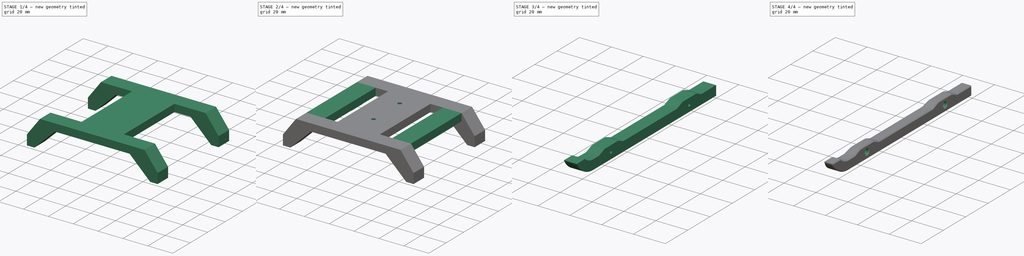
[diagram: build sequence overview — one tinted view per stage of 4, left to right]
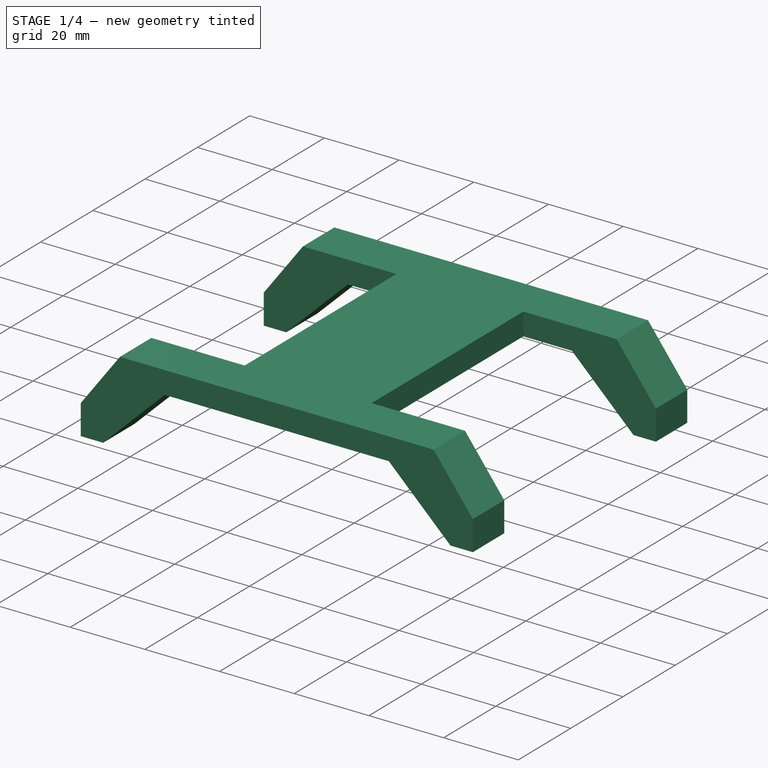
[diagram: stage 1 of 4 — iso view after this stage's code; geometry added in this stage tinted green]
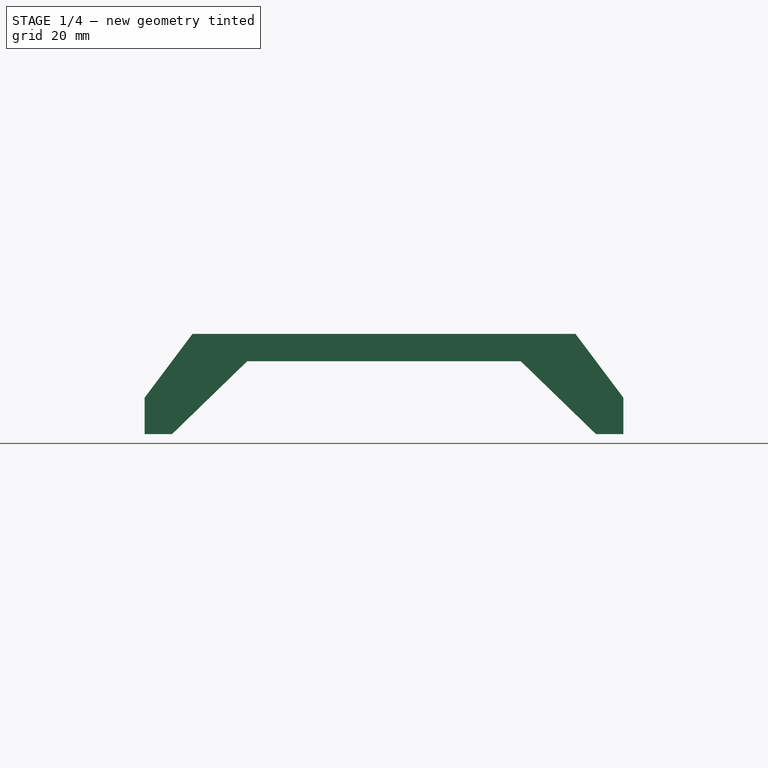
[diagram: stage 1 of 4 — front view after this stage's code; geometry added in this stage tinted green]
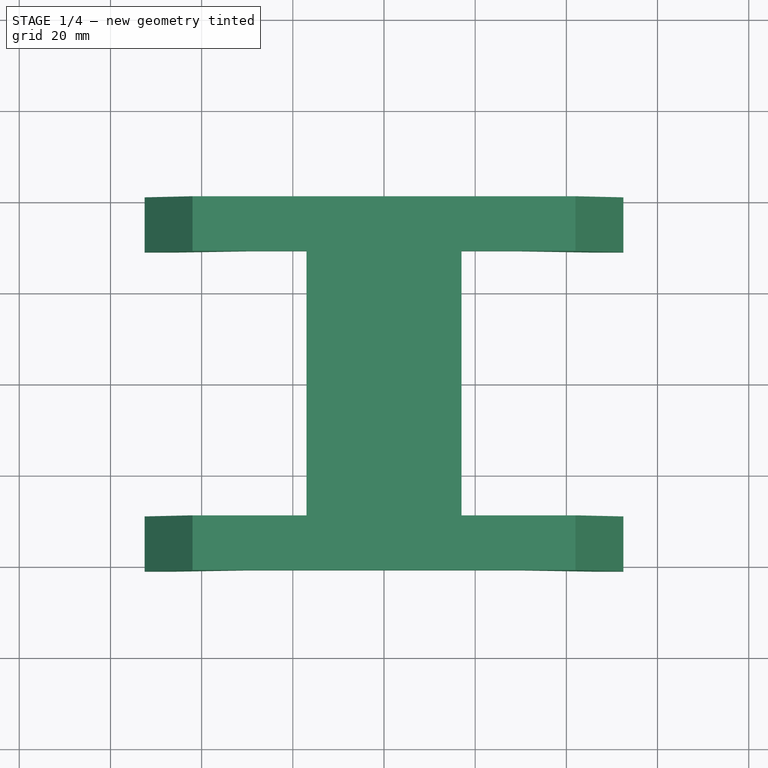
[diagram: stage 1 of 4 — top view after this stage's code; geometry added in this stage tinted green]
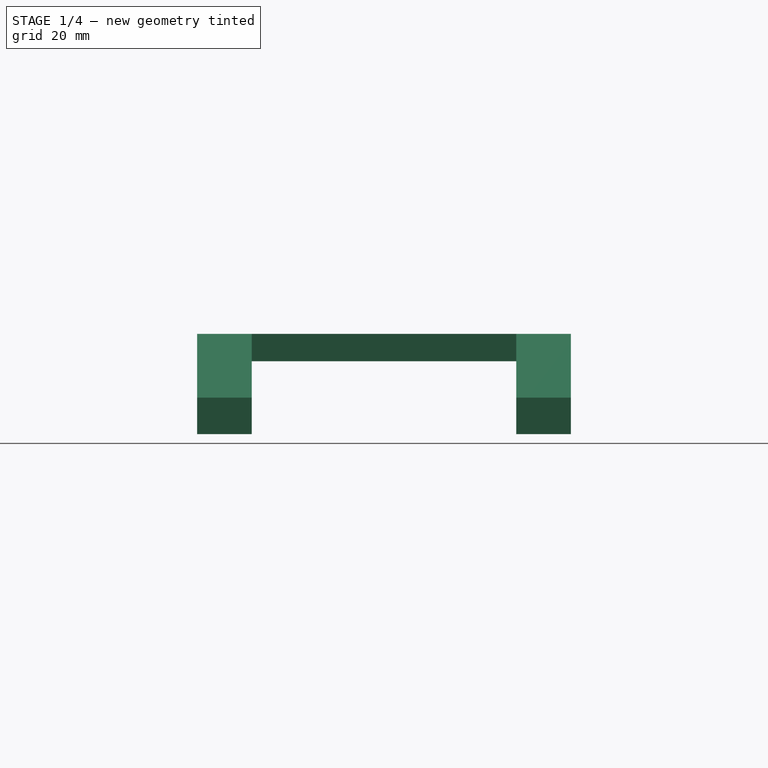
[diagram: stage 1 of 4 — right view after this stage's code; geometry added in this stage tinted green]
FCSTD DOCUMENT  (FreeCAD 1.0R39285 (Git))
Label: hubschrauber
License: All rights reserved
LicenseURL: https://en.wikipedia.org/wiki/All_rights_reserved
objects: Sketcher::SketchObject×8, PartDesign::Pad×5, PartDesign::Hole×3, PartDesign::Pocket×2, PartDesign::Body×2, PartDesign::SubShapeBinder×1, PartDesign::Chamfer×1
note: 52 computed .brp shape members not serialized (recipe doc carries the construction recipe); baked Part::Feature solids carry a one-line shape summary decoded from their .brp

FEATURE [Sketcher::SketchObject] Sketch
  ArcFitTolerance = 1e-06
  AttachmentSupport = -> [XZ_Plane]
  FullyConstrained = true
  MakeInternals = false
  MapMode = 5
  Placement = pos=(0,0,0) rot=(1,0,0;1.5708rad)
  sketch-geometry (17):
    g0: LineSegment StartX=-52.5 StartY=-22 StartZ=0 EndX=-46.5 EndY=-22 EndZ=0
    g1: LineSegment StartX=-46.5 StartY=-22 StartZ=0 EndX=-30 EndY=-6 EndZ=0
    g2: LineSegment StartX=30 StartY=-6 StartZ=0 EndX=46.5 EndY=-22 EndZ=0
    g3: LineSegment [constr] StartX=-46.5 StartY=-22 StartZ=0 EndX=46.5 EndY=-22 EndZ=0
    g4: LineSegment StartX=46.5 StartY=-22 StartZ=0 EndX=52.5 EndY=-22 EndZ=0
    g5: LineSegment StartX=-42 StartY=0 StartZ=0 EndX=-52.5 EndY=-14 EndZ=0
    g6: LineSegment StartX=-52.5 StartY=-14 StartZ=0 EndX=-52.5 EndY=-22 EndZ=0
    g7: LineSegment StartX=42 StartY=0 StartZ=0 EndX=52.5 EndY=-14 EndZ=0
    g8: LineSegment StartX=52.5 StartY=-14 StartZ=0 EndX=52.5 EndY=-22 EndZ=0
    g9: LineSegment [constr] StartX=-30 StartY=-6 StartZ=0 EndX=0 EndY=-22 EndZ=0
    g10: LineSegment [constr] StartX=30 StartY=-6 StartZ=0 EndX=0 EndY=-22 EndZ=0
    g11: LineSegment StartX=-30 StartY=-6 StartZ=0 EndX=0 EndY=-6 EndZ=0
    g12: LineSegment StartX=0 StartY=-6 StartZ=0 EndX=30 EndY=-6 EndZ=0
    g13: LineSegment [constr] StartX=-46.5 StartY=-22 StartZ=0 EndX=0 EndY=-6 EndZ=0
    g14: LineSegment [constr] StartX=0 StartY=-6 StartZ=0 EndX=46.5 EndY=-22 EndZ=0
    g15: LineSegment StartX=-42 StartY=0 StartZ=0 EndX=0 EndY=0 EndZ=0
    g16: LineSegment StartX=0 StartY=0 StartZ=0 EndX=42 EndY=0 EndZ=0
  constraints (46):
    c: PointOnObject(g5,g-1)
    c: PointOnObject(g7,g-1)
    c: Coincident(g0,g6)
    c: Horizontal(g0)
    c: Coincident(g3,g0)
    c: Coincident(g3,g2)
    c: Horizontal(g3)
    c: Coincident(g4,g2)
    c: Coincident(g4,g8)
    c: Horizontal(g4)
    c: Coincident(g5,g6)
    c: Coincident(g7,g8)
    c: Vertical(g6)
    c: Vertical(g8)
    c: Equal(g0,g4)
    c: Equal(g8,g6)
    c: Coincident(g1,g0)
    c: Coincident(g9,g1)
    c: PointOnObject(g9,g-2)
    c: Coincident(g10,g9)
    c: Equal(g10,g9)
    c: PointOnObject(g9,g3)
    c: DistanceX(g0,g4) = 105
    c: DistanceX(g5,g7) = 84
    c: DistanceY(g0,g5) = 22
    c: DistanceY(g2,g7) = 6
    c: DistanceX(g4,g4) = 6
    c: Coincident(g1,g11)
    c: PointOnObject(g11,g-2)
    c: Horizontal(g11)
    c: Coincident(g11,g12)
    c: Coincident(g12,g2)
    c: Horizontal(g12)
    c: DistanceX(g1,g2) = 60
    c: Coincident(g2,g10)
    c: Coincident(g0,g13)
    c: Coincident(g13,g11)
    c: Coincident(g13,g14)
    c: Coincident(g14,g2)
    c: Equal(g14,g13)
    c: DistanceY(g8,g8) = 8
    c: Coincident(g5,g15)
    c: Coincident(g15,g-1)
    c: Coincident(g15,g16)
    c: Coincident(g16,g7)
    c: Equal(g15,g16)
FEATURE [Sketcher::SketchObject] Sketch001
  ArcFitTolerance = 1e-06
  AttachmentSupport = -> [XY_Plane]
  FullyConstrained = true
  MakeInternals = false
  MapMode = 5
  sketch-geometry (8):
    g0: LineSegment StartX=-17 StartY=41 StartZ=0 EndX=-17 EndY=-41 EndZ=0
    g1: LineSegment StartX=-17 StartY=-41 StartZ=0 EndX=17 EndY=-41 EndZ=0
    g2: LineSegment StartX=17 StartY=-41 StartZ=0 EndX=17 EndY=41 EndZ=0
    g3: LineSegment StartX=17 StartY=41 StartZ=0 EndX=-17 EndY=41 EndZ=0
    g4: LineSegment [constr] StartX=-17 StartY=41 StartZ=0 EndX=0 EndY=0 EndZ=0
    g5: LineSegment [constr] StartX=0 StartY=0 StartZ=0 EndX=17 EndY=41 EndZ=0
    g6: LineSegment [constr] StartX=17 StartY=-41 StartZ=0 EndX=0 EndY=0 EndZ=0
    g7: LineSegment [constr] StartX=0 StartY=0 StartZ=0 EndX=-17 EndY=-41 EndZ=0
  constraints (20):
    c: Coincident(g0,g1)
    c: Coincident(g1,g2)
    c: Coincident(g2,g3)
    c: Coincident(g3,g0)
    c: Vertical(g0)
    c: Vertical(g2)
    c: Horizontal(g1)
    c: Horizontal(g3)
    c: DistanceX(g1,g1) = 34
    c: DistanceY(g2,g2) = 82
    c: Coincident(g0,g4)
    c: Coincident(g4,g-1)
    c: Coincident(g4,g5)
    c: Coincident(g5,g2)
    c: Coincident(g1,g6)
    c: Coincident(g6,g4)
    c: Coincident(g6,g7)
    c: Coincident(g7,g0)
    c: Equal(g4,g5)
    c: Equal(g6,g4)
FEATURE [PartDesign::Pad] Pad
  Direction = (0,0,1)
  Length = 6
  Length2 = 10
  Profile = -> Sketch001
  ReferenceAxis = -> Sketch001 [N_Axis]
  Refine = true
  Reversed = true
  Suppressed = false
  Type = 0
FEATURE [PartDesign::Pad] Pad001
  BaseFeature = -> Pad
  Direction = (0,-1,2e-16)
  Length = 29
  Length2 = -41
  Profile = -> Sketch
  ReferenceAxis = -> Sketch [N_Axis]
  Refine = true
  Suppressed = false
  Type = 4
FEATURE [PartDesign::Pad] Pad002
  BaseFeature = -> Pad001
  Direction = (0,-1,2e-16)
  Length = 29
  Length2 = -41
  Profile = -> Sketch
  ReferenceAxis = -> Sketch [N_Axis]
  Refine = true
  Reversed = true
  Suppressed = false
  Type = 4
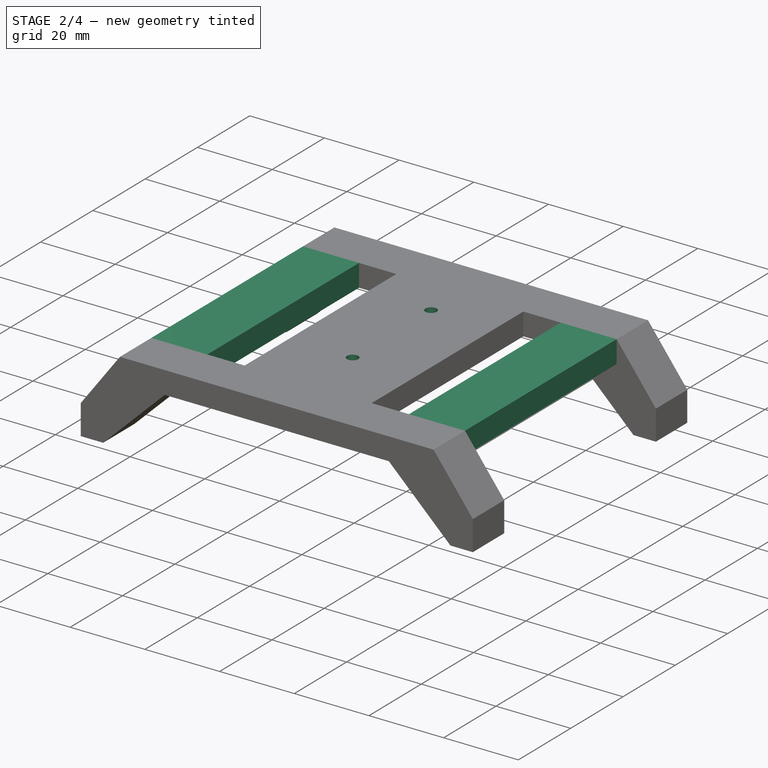
[diagram: stage 2 of 4 — iso view after this stage's code; geometry added in this stage tinted green]
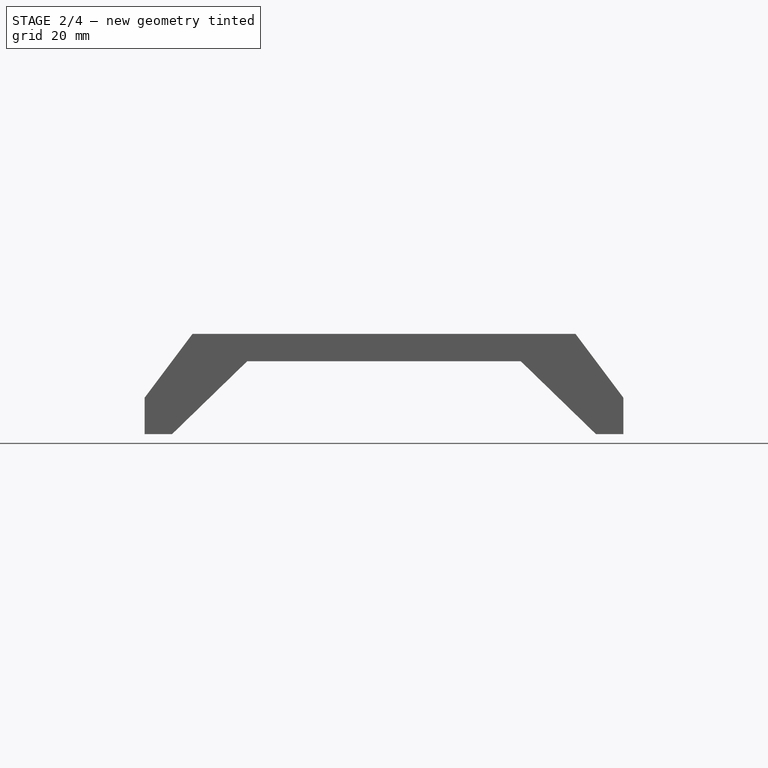
[diagram: stage 2 of 4 — front view after this stage's code; geometry added in this stage tinted green]
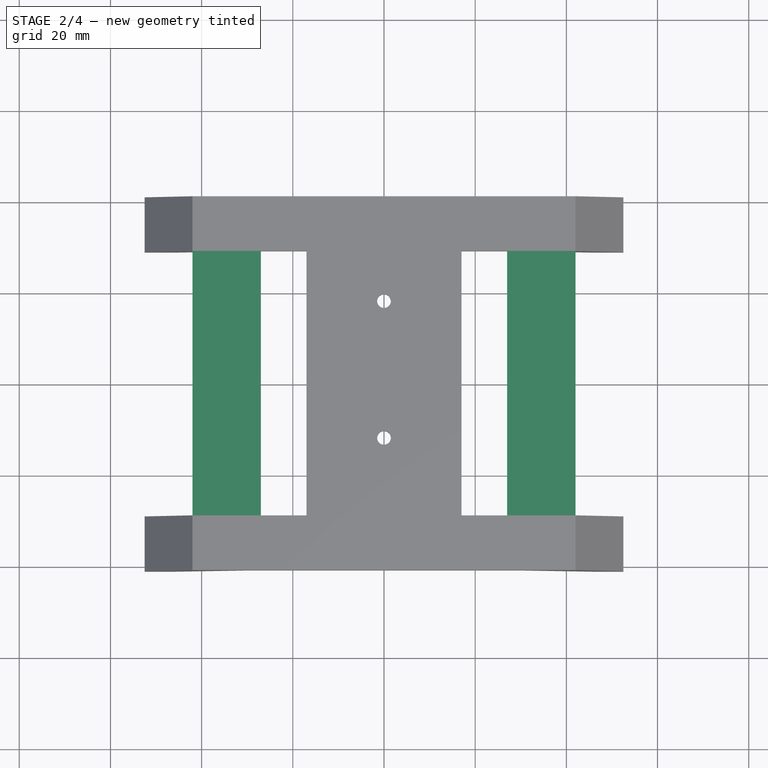
[diagram: stage 2 of 4 — top view after this stage's code; geometry added in this stage tinted green]
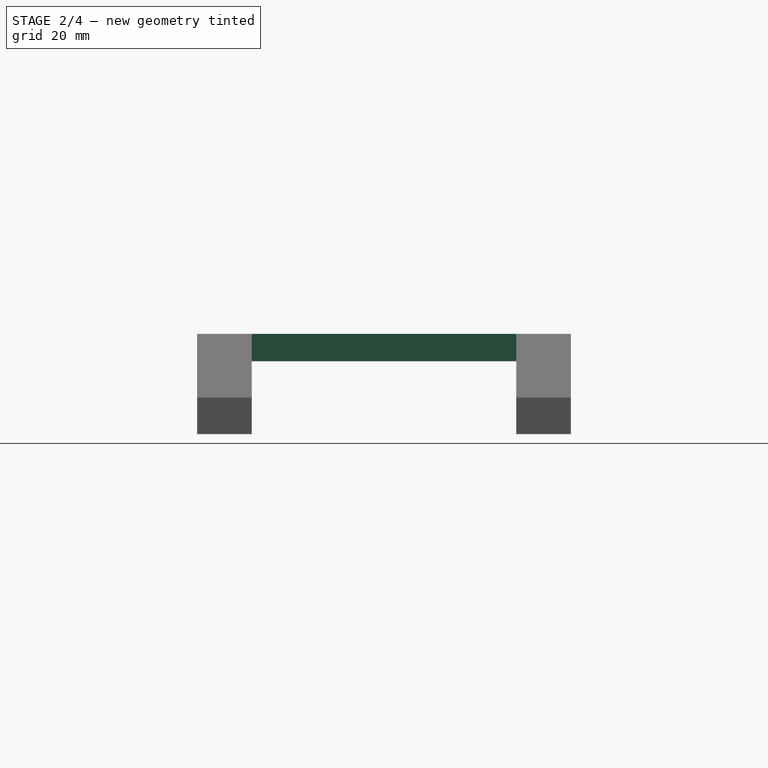
[diagram: stage 2 of 4 — right view after this stage's code; geometry added in this stage tinted green]
FEATURE [Sketcher::SketchObject] Sketch002
  ArcFitTolerance = 1e-06
  AttachmentSupport = -> [XY_Plane]
  ExternalGeometry = -> [Pad002]
  FullyConstrained = true
  MakeInternals = false
  MapMode = 5
  sketch-geometry (2):
    g0: Circle CenterX=0 CenterY=18 CenterZ=0 NormalX=0 NormalY=0 NormalZ=1 AngleXU=0 Radius=1.5
    g1: Circle CenterX=0 CenterY=-12 CenterZ=0 NormalX=0 NormalY=0 NormalZ=1 AngleXU=0 Radius=1.5
  constraints (6):
    c: PointOnObject(g0,g-2)
    c: PointOnObject(g1,g-2)
    c: Equal(g0,g1)
    c: Diameter(g0) = 3
    c: DistanceY(g1,g0) = 30
    c: DistanceY(g0,g-3) = 23
FEATURE [PartDesign::Hole] Hole
  BaseFeature = -> Pad002
  CustomThreadClearance = 0
  Depth = 272.76
  DepthType = 1
  Diameter = 3
  DrillForDepth = false
  DrillPoint = 1
  DrillPointAngle = 118
  HoleCutCountersinkAngle = 90
  HoleCutCustomValues = false
  HoleCutDepth = 0
  HoleCutDiameter = 6.1
  HoleCutType = 0
  ModelThread = false
  Profile = -> Sketch002
  Refine = true
  Suppressed = false
  Tapered = false
  TaperedAngle = 90
  ThreadClass = 0
  ThreadDepth = 272.76
  ThreadDepthType = 0
  ThreadDirection = 0
  ThreadFit = 0
  ThreadSize = 0
  ThreadType = 0
  Threaded = false
  UseCustomThreadClearance = false
FEATURE [Sketcher::SketchObject] Sketch003
  ArcFitTolerance = 1e-06
  AttachmentSupport = -> [Hole]
  ExternalGeometry = -> [Hole]
  FullyConstrained = true
  MakeInternals = false
  MapMode = 5
  Placement = pos=(0,0,-6) rot=(1,0,0;3.14159rad)
  sketch-geometry (14):
    g0: LineSegment StartX=2.875 StartY=10.3401 StartZ=0 EndX=2.875 EndY=13.6599 EndZ=0
    g1: LineSegment StartX=2.875 StartY=13.6599 StartZ=0 EndX=1.86255e-11 EndY=15.3198 EndZ=0
    g2: LineSegment StartX=1.86255e-11 StartY=15.3198 StartZ=0 EndX=-2.875 EndY=13.6599 EndZ=0
    g3: LineSegment StartX=-2.875 StartY=13.6599 StartZ=0 EndX=-2.875 EndY=10.3401 EndZ=0
    g4: LineSegment StartX=-2.875 StartY=10.3401 StartZ=0 EndX=2.92175e-11 EndY=8.68024 EndZ=0
    g5: LineSegment StartX=2.92173e-11 StartY=8.68024 StartZ=0 EndX=2.875 EndY=10.3401 EndZ=0
    g6: Circle [constr] CenterX=0 CenterY=12 CenterZ=0 NormalX=0 NormalY=0 NormalZ=1 AngleXU=0 Radius=3.31976
    g7: LineSegment StartX=2.875 StartY=-19.6599 StartZ=0 EndX=2.875 EndY=-16.3401 EndZ=0
    g8: LineSegment StartX=2.875 StartY=-16.3401 StartZ=0 EndX=-4e-16 EndY=-14.6802 EndZ=0
    g9: LineSegment StartX=-4e-16 StartY=-14.6802 StartZ=0 EndX=-2.875 EndY=-16.3401 EndZ=0
    g10: LineSegment StartX=-2.875 StartY=-16.3401 StartZ=0 EndX=-2.875 EndY=-19.6599 EndZ=0
    g11: LineSegment StartX=-2.875 StartY=-19.6599 StartZ=0 EndX=-4e-16 EndY=-21.3198 EndZ=0
    g12: LineSegment StartX=-4e-16 StartY=-21.3198 StartZ=0 EndX=2.875 EndY=-19.6599 EndZ=0
    g13: Circle [constr] CenterX=0 CenterY=-18 CenterZ=0 NormalX=0 NormalY=0 NormalZ=1 AngleXU=0 Radius=3.31976
  constraints (32):
    c: Coincident(g0,g1)
    c: Coincident(g1,g2)
    c: Coincident(g2,g3)
    c: Coincident(g3,g4)
    c: Coincident(g4,g5)
    c: Coincident(g5,g0)
    c: Equal(g0, g1-g5) x5
    c: PointOnObject(g0,g6)
    c: PointOnObject(g1,g6)
    c: PointOnObject(g2,g6)
    c: PointOnObject(g3,g6)
    c: PointOnObject(g4,g6)
    c: PointOnObject(g5,g6)
    c: Coincident(g6,g-3)
    c: Coincident(g7,g8)
    c: Coincident(g8,g9)
    c: Coincident(g9,g10)
    c: Coincident(g10,g11)
    c: Coincident(g11,g12)
    c: Coincident(g12,g7)
    c: Equal(g7, g8-g12) x5
    c: PointOnObject(g7,g13)
    c: PointOnObject(g8,g13)
    c: PointOnObject(g9,g13)
    c: PointOnObject(g10,g13)
    c: PointOnObject(g11,g13)
    c: PointOnObject(g12,g13)
    c: Coincident(g13,g-4)
    c: Vertical(g0)
    c: Vertical(g7)
    c: Equal(g0,g7)
    c: DistanceX(g2,g0) = 5.75
FEATURE [PartDesign::Pocket] Pocket
  BaseFeature = -> Hole
  Direction = (0,0,1)
  Length = 2.4
  Length2 = 5
  Profile = -> Sketch003
  ReferenceAxis = -> Sketch003 [N_Axis]
  Refine = true
  Suppressed = false
  Type = 0
FEATURE [Sketcher::SketchObject] Sketch004
  ArcFitTolerance = 1e-06
  AttachmentSupport = -> [XY_Plane]
  ExternalGeometry = -> [Pocket]
  FullyConstrained = true
  MakeInternals = false
  MapMode = 5
  sketch-geometry (8):
    g0: LineSegment StartX=-42 StartY=29 StartZ=0 EndX=-42 EndY=-29 EndZ=0
    g1: LineSegment StartX=-42 StartY=-29 StartZ=0 EndX=-27 EndY=-29 EndZ=0
    g2: LineSegment StartX=-27 StartY=-29 StartZ=0 EndX=-27 EndY=29 EndZ=0
    g3: LineSegment StartX=-27 StartY=29 StartZ=0 EndX=-42 EndY=29 EndZ=0
    g4: LineSegment StartX=42 StartY=29 StartZ=0 EndX=27 EndY=29 EndZ=0
    g5: LineSegment StartX=27 StartY=29 StartZ=0 EndX=27 EndY=-29 EndZ=0
    g6: LineSegment StartX=27 StartY=-29 StartZ=0 EndX=42 EndY=-29 EndZ=0
    g7: LineSegment StartX=42 StartY=-29 StartZ=0 EndX=42 EndY=29 EndZ=0
  constraints (20):
    c: Coincident(g0,g1)
    c: Coincident(g1,g2)
    c: Coincident(g2,g3)
    c: Coincident(g3,g0)
    c: Vertical(g2)
    c: Horizontal(g1)
    c: Horizontal(g3)
    c: Coincident(g0,g-3)
    c: Coincident(g4,g5)
    c: Coincident(g5,g6)
    c: Coincident(g6,g7)
    c: Coincident(g7,g4)
    c: Horizontal(g4)
    c: Horizontal(g6)
    c: Vertical(g5)
    c: Coincident(g4,g-4)
    c: Coincident(g-5,g6)
    c: Coincident(g0,g-6)
    c: Equal(g1,g6)
    c: DistanceX(g4,g4) = 15
FEATURE [PartDesign::Pad] Pad003
  BaseFeature = -> Pocket
  Direction = (0,0,1)
  Length = 6
  Length2 = 10
  Profile = -> Sketch004
  ReferenceAxis = -> Sketch004 [N_Axis]
  Refine = true
  Reversed = true
  Suppressed = false
  Type = 0
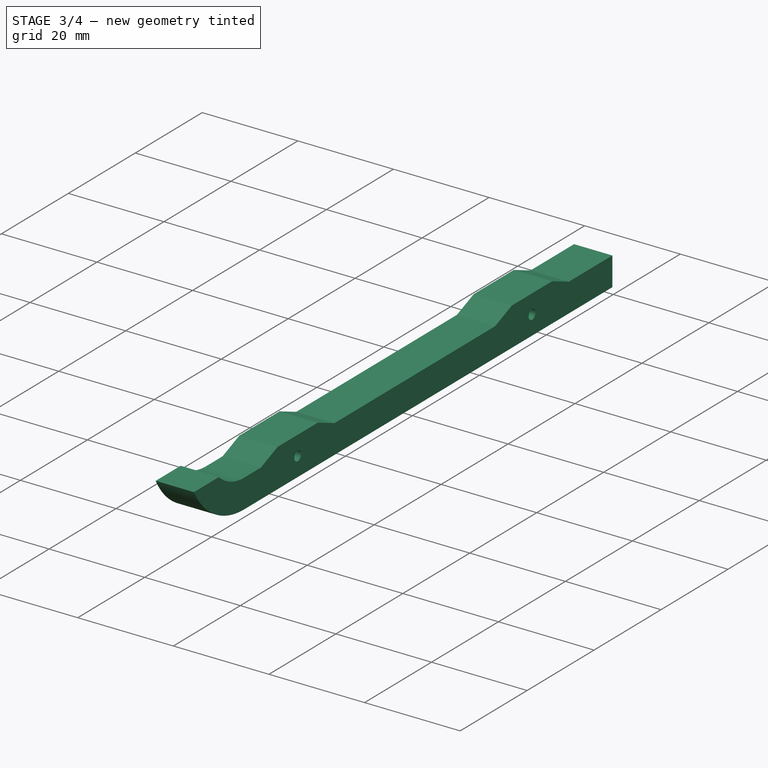
[diagram: stage 3 of 4 — iso view after this stage's code; geometry added in this stage tinted green]
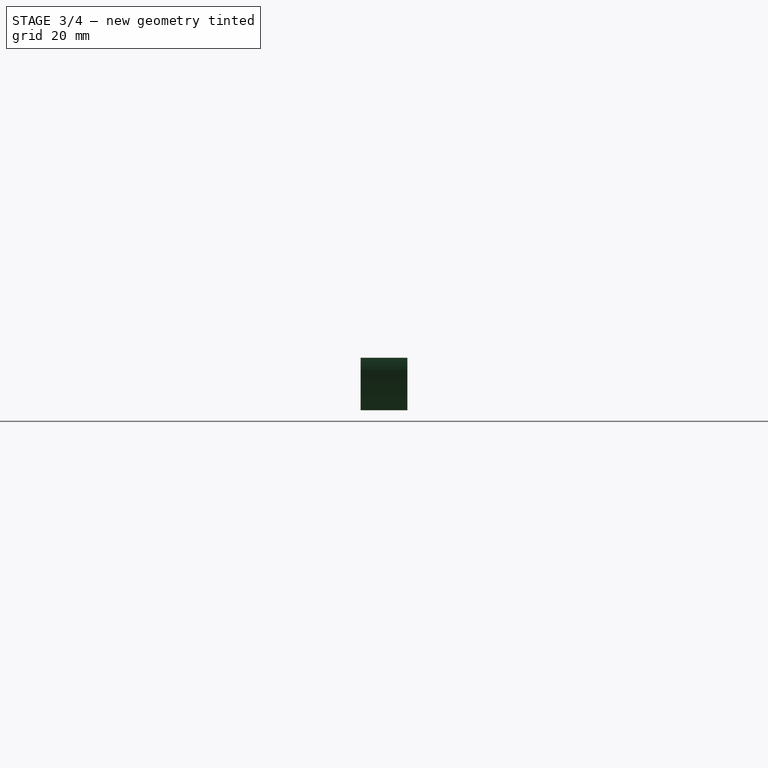
[diagram: stage 3 of 4 — front view after this stage's code; geometry added in this stage tinted green]
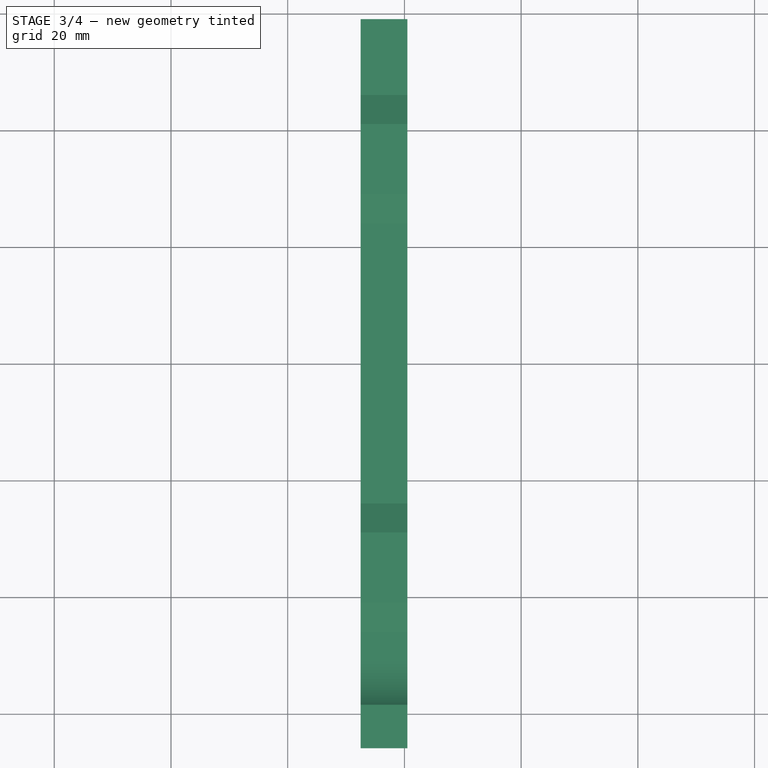
[diagram: stage 3 of 4 — top view after this stage's code; geometry added in this stage tinted green]
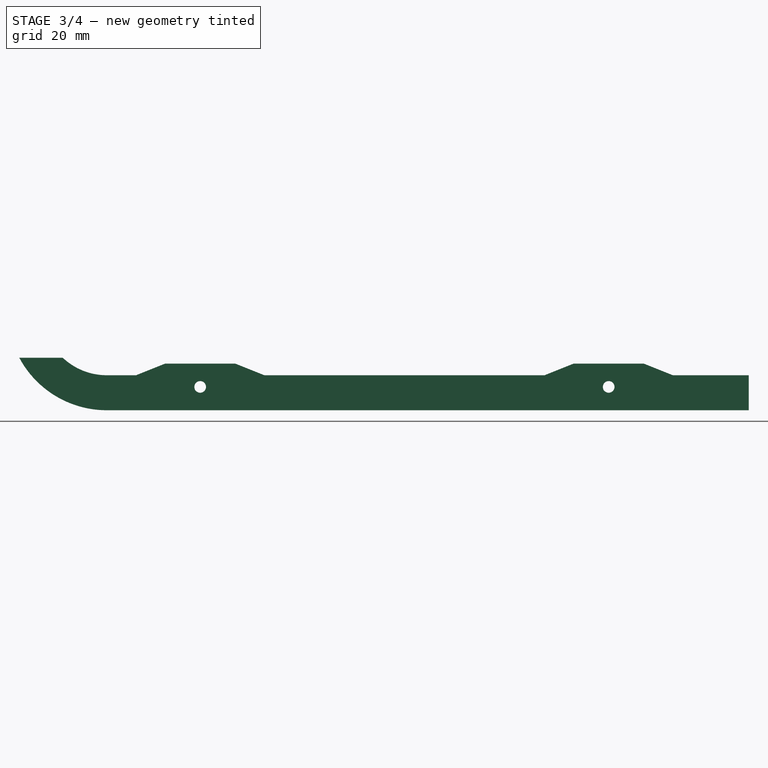
[diagram: stage 3 of 4 — right view after this stage's code; geometry added in this stage tinted green]
FEATURE [Sketcher::SketchObject] Sketch005
  ArcFitTolerance = 1e-06
  AttachmentOffset = pos=(0,0,100) rot=(0,0,1;0rad)
  AttachmentSupport = -> [YZ_Plane]
  ExternalGeometry = -> [Pad003]
  FullyConstrained = true
  MakeInternals = false
  MapMode = 5
  Placement = pos=(100,0,0) rot=(0.57735,0.57735,0.57735;2.0944rad)
  sketch-geometry (6):
    g0: LineSegment [constr] StartX=-41 StartY=-14 StartZ=0 EndX=-29 EndY=-22 EndZ=0
    g1: LineSegment [constr] StartX=-29 StartY=-14 StartZ=0 EndX=-41 EndY=-22 EndZ=0
    g2: LineSegment [constr] StartX=29 StartY=-14 StartZ=0 EndX=41 EndY=-22 EndZ=0
    g3: LineSegment [constr] StartX=41 StartY=-14 StartZ=0 EndX=29 EndY=-22 EndZ=0
    g4: Circle CenterX=35 CenterY=-18 CenterZ=0 NormalX=0 NormalY=0 NormalZ=1 AngleXU=0 Radius=1.5
    g5: Circle CenterX=-35 CenterY=-18 CenterZ=0 NormalX=0 NormalY=0 NormalZ=1 AngleXU=0 Radius=1.5
  constraints (14):
    c: Coincident(g0,g-4)
    c: Coincident(g0,g-3)
    c: Coincident(g1,g-4)
    c: Coincident(g1,g-3)
    c: Coincident(g2,g-5)
    c: Coincident(g2,g-6)
    c: Coincident(g3,g-5)
    c: Coincident(g3,g-6)
    c: PointOnObject(g4,g2)
    c: PointOnObject(g5,g1)
    c: PointOnObject(g5,g0)
    c: PointOnObject(g4,g3)
    c: Equal(g5,g4)
    c: Diameter(g5) = 3
FEATURE [PartDesign::Hole] Hole001
  BaseFeature = -> Pad003
  CustomThreadClearance = 0
  Depth = 352.571
  DepthType = 1
  Diameter = 2.52
  DrillForDepth = false
  DrillPoint = 1
  DrillPointAngle = 118
  HoleCutCountersinkAngle = 90
  HoleCutCustomValues = false
  HoleCutDepth = 0
  HoleCutDiameter = 6.1
  HoleCutType = 0
  ModelThread = true
  Profile = -> Sketch005
  Refine = true
  Suppressed = false
  Tapered = false
  TaperedAngle = 90
  ThreadClass = 0
  ThreadDepth = 352.571
  ThreadDepthType = 0
  ThreadDirection = 0
  ThreadFit = 0
  ThreadSize = 9
  ThreadType = 1
  Threaded = true
  UseCustomThreadClearance = false
FEATURE [PartDesign::Body] Body
  AllowCompound = false
  Group = -> [Sketch,Sketch001,Pad,Pad001,Pad002,Sketch002,Hole,Sketch003,Pocket,Sketch004,Pad003,Sketch005,Hole001]
  Origin = -> Origin
  Tip = -> Hole001
FEATURE [PartDesign::SubShapeBinder] Binder
  BindCopyOnChange = 0
  BindMode = 0
  ClaimChildren = false
  Context = -> Body001 [Binder.]
  Fuse = false
  MakeFace = true
  OffsetFill = false
  OffsetIntersection = false
  OffsetJoinType = 0
  OffsetOpenResult = false
  PartialLoad = false
  Refine = true
  Relative = true
  Support = -> [Body]
  _Version = 2
FEATURE [Sketcher::SketchObject] Sketch006
  ArcFitTolerance = 1e-06
  AttachmentSupport = -> [Binder]
  ExternalGeometry = -> [Binder]
  FullyConstrained = true
  MakeInternals = false
  MapMode = 5
  Placement = pos=(52.5,0,0) rot=(0.57735,0.57735,0.57735;2.0944rad)
  sketch-geometry (23):
    g0: LineSegment [constr] StartX=-41 StartY=-14 StartZ=0 EndX=-29 EndY=-22 EndZ=0
    g1: LineSegment [constr] StartX=-29 StartY=-14 StartZ=0 EndX=-41 EndY=-22 EndZ=0
    g2: LineSegment [constr] StartX=29 StartY=-14 StartZ=0 EndX=41 EndY=-22 EndZ=0
    g3: LineSegment [constr] StartX=41 StartY=-14 StartZ=0 EndX=29 EndY=-22 EndZ=0
    g4: LineSegment StartX=59 StartY=-22 StartZ=0 EndX=-51 EndY=-22 EndZ=0
    g5: ArcOfCircle CenterX=-51 CenterY=-5 CenterZ=0 NormalX=0 NormalY=0 NormalZ=1 AngleXU=0 Radius=17 StartAngle=3.63155 EndAngle=4.71239
    g6: LineSegment StartX=59 StartY=-22 StartZ=0 EndX=59 EndY=-16 EndZ=0
    g7: LineSegment StartX=59 StartY=-16 StartZ=0 EndX=46 EndY=-16 EndZ=0
    g8: LineSegment StartX=46 StartY=-16 StartZ=0 EndX=41 EndY=-14 EndZ=0
    g9: LineSegment StartX=41 StartY=-14 StartZ=0 EndX=29 EndY=-14 EndZ=0
    g10: LineSegment StartX=29 StartY=-14 StartZ=0 EndX=24 EndY=-16 EndZ=0
    g11: LineSegment StartX=24 StartY=-16 StartZ=0 EndX=-24 EndY=-16 EndZ=0
    g12: LineSegment StartX=-24 StartY=-16 StartZ=0 EndX=-29 EndY=-14 EndZ=0
    g13: LineSegment StartX=-29 StartY=-14 StartZ=0 EndX=-41 EndY=-14 EndZ=0
    g14: LineSegment StartX=-41 StartY=-14 StartZ=0 EndX=-46 EndY=-16 EndZ=0
    g15: LineSegment StartX=-46 StartY=-16 StartZ=0 EndX=-51 EndY=-16 EndZ=0
    g16: LineSegment StartX=-66 StartY=-13 StartZ=0 EndX=-58.5498 EndY=-13 EndZ=0
    g17: ArcOfCircle CenterX=-51 CenterY=-5 CenterZ=0 NormalX=0 NormalY=0 NormalZ=1 AngleXU=0 Radius=11 StartAngle=3.95593 EndAngle=4.71239
    g18: LineSegment [constr] StartX=24 StartY=-16 StartZ=0 EndX=46 EndY=-16 EndZ=0
    g19: LineSegment [constr] StartX=-24 StartY=-16 StartZ=0 EndX=-46 EndY=-16 EndZ=0
    g20: LineSegment [constr] StartX=-51 StartY=-16 StartZ=0 EndX=-51 EndY=-22 EndZ=0
    g21: Circle CenterX=-35 CenterY=-18 CenterZ=0 NormalX=0 NormalY=0 NormalZ=1 AngleXU=0 Radius=1
    g22: Circle CenterX=35 CenterY=-18 CenterZ=0 NormalX=0 NormalY=0 NormalZ=1 AngleXU=0 Radius=1
  constraints (58):
    c: Coincident(g0,g-3)
    c: Coincident(g0,g-4)
    c: Coincident(g1,g-3)
    c: Coincident(g1,g-4)
    c: Coincident(g2,g-5)
    c: Coincident(g2,g-6)
    c: Coincident(g3,g-5)
    c: Coincident(g3,g-6)
    c: Horizontal(g4)
    c: PointOnObject(g2,g4)
    c: Tangent(g5,g4) = 1.5708
    c: Coincident(g6,g4)
    c: Vertical(g6)
    c: Coincident(g6,g7)
    c: Horizontal(g7)
    c: Coincident(g7,g8)
    c: Coincident(g8,g3)
    c: Coincident(g8,g9)
    c: Coincident(g9,g2)
    c: Coincident(g9,g10)
    c: Coincident(g10,g11)
    c: Horizontal(g11)
    c: Coincident(g12,g1)
    c: Coincident(g12,g13)
    c: Coincident(g13,g0)
    c: Coincident(g13,g14)
    c: Coincident(g14,g15)
    c: Horizontal(g15)
    c: Coincident(g5,g16)
    c: Coincident(g17,g5)
    c: Coincident(g17,g15)
    c: Coincident(g17,g16)
    c: DistanceY(g6,g6) = 6
    c: DistanceX(g3,g6) = 18
    c: Horizontal(g16)
    c: Coincident(g18,g10)
    c: Coincident(g18,g7)
    c: Horizontal(g18)
    c: Coincident(g19,g11)
    c: Coincident(g19,g14)
    c: Horizontal(g19)
    c: Coincident(g20,g15)
    c: Coincident(g20,g4)
    c: Vertical(g20)
    c: DistanceY(g4,g5) = 9
    c: DistanceX(g5,g1) = 25
    c: Coincident(g12,g11)
    c: Equal(g10,g8)
    c: Equal(g12,g14)
    c: Equal(g10,g12)
    c: DistanceX(g4,g1) = 10
    c: DistanceX(g0,g11) = 5
    c: PointOnObject(g21,g0)
    c: PointOnObject(g22,g2)
    c: Equal(g21,g22)
    c: PointOnObject(g21,g1)
    c: PointOnObject(g22,g3)
    c: Diameter(g22) = 2
FEATURE [PartDesign::Pad] Pad004
  Direction = (1,0,0)
  Length = 8
  Length2 = 10
  Profile = -> Sketch006
  ReferenceAxis = -> Sketch006 [N_Axis]
  Refine = true
  Suppressed = false
  Type = 0
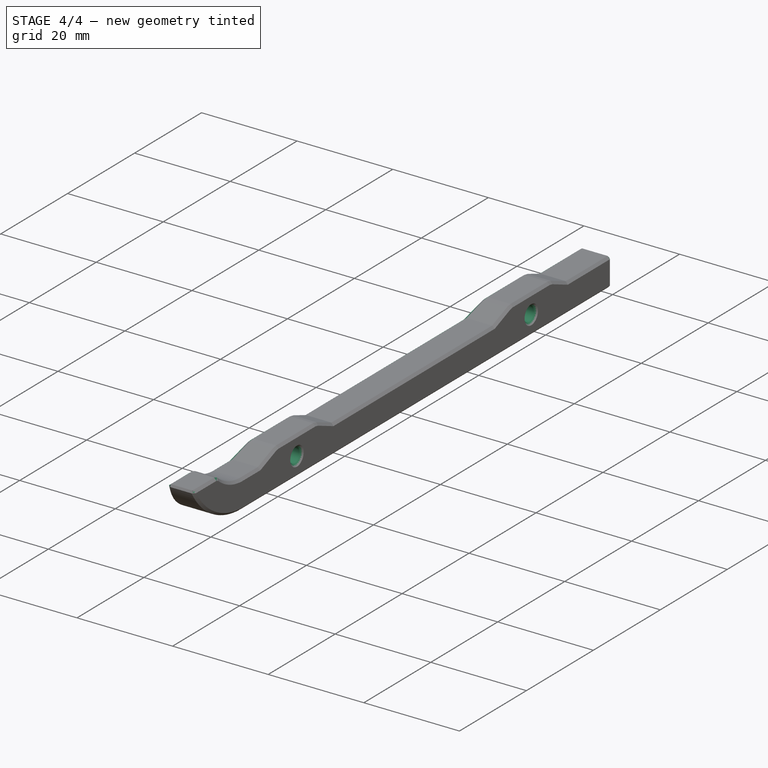
[diagram: stage 4 of 4 — iso view after this stage's code; geometry added in this stage tinted green]
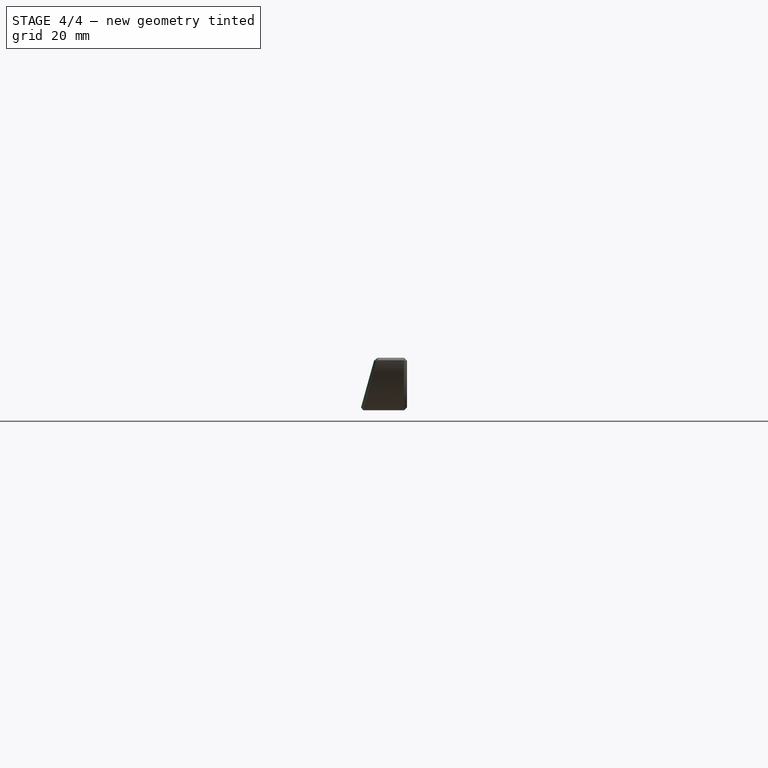
[diagram: stage 4 of 4 — front view after this stage's code; geometry added in this stage tinted green]
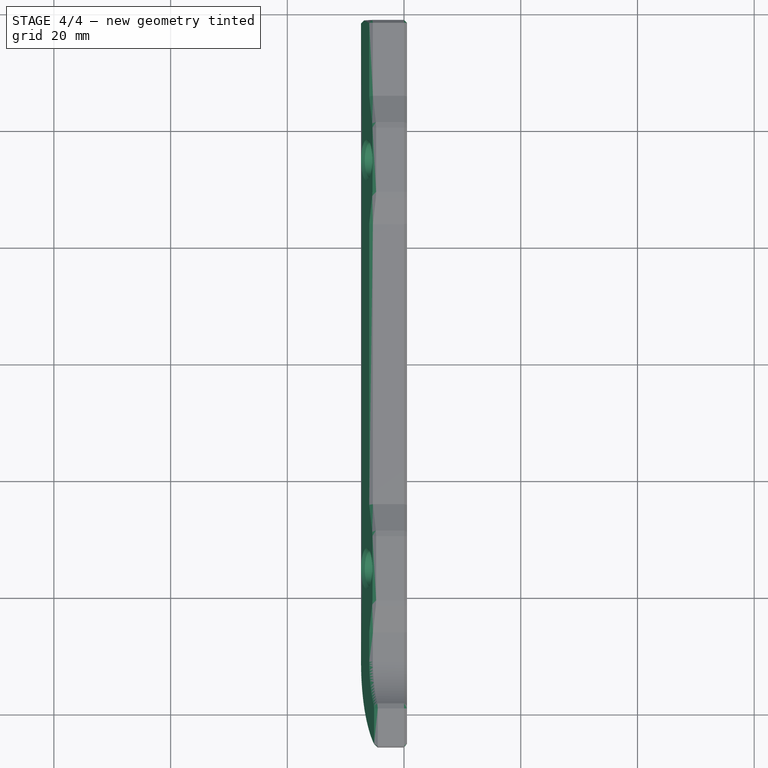
[diagram: stage 4 of 4 — top view after this stage's code; geometry added in this stage tinted green]
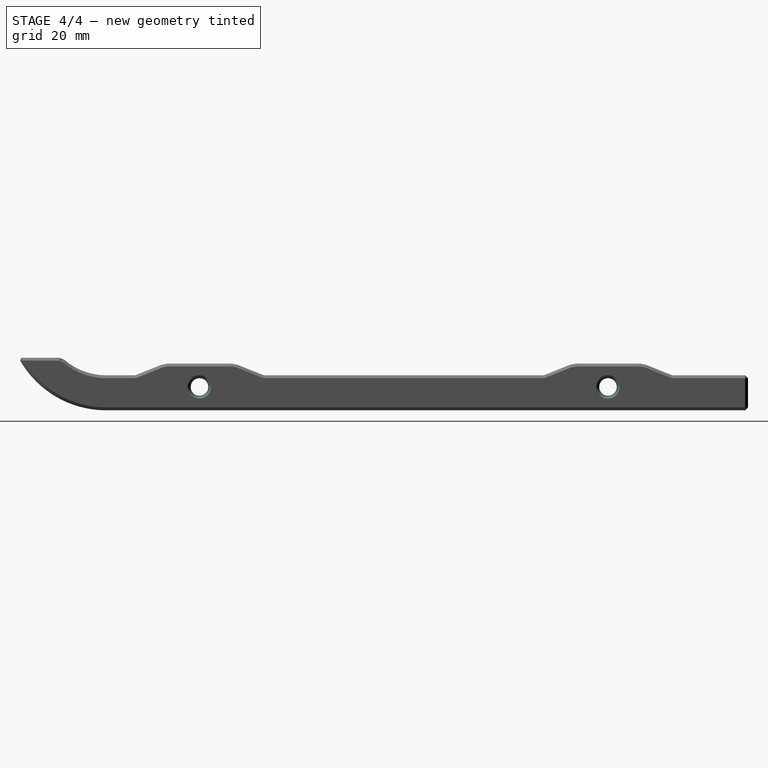
[diagram: stage 4 of 4 — right view after this stage's code; geometry added in this stage tinted green]
FEATURE [PartDesign::Hole] Hole002
  BaseFeature = -> Pad004
  CustomThreadClearance = 0
  Depth = 253.669
  DepthType = 1
  Diameter = 3
  DrillForDepth = false
  DrillPoint = 1
  DrillPointAngle = 118
  HoleCutCountersinkAngle = 90
  HoleCutCustomValues = false
  HoleCutDepth = 4.5
  HoleCutDiameter = 6
  HoleCutType = 1
  ModelThread = false
  Profile = -> Sketch006
  Refine = true
  Reversed = true
  Suppressed = false
  Tapered = false
  TaperedAngle = 90
  ThreadClass = 0
  ThreadDepth = 253.669
  ThreadDepthType = 0
  ThreadDirection = 0
  ThreadFit = 0
  ThreadSize = 0
  ThreadType = 0
  Threaded = false
  UseCustomThreadClearance = false
FEATURE [Sketcher::SketchObject] Sketch007
  ArcFitTolerance = 1e-06
  AttachmentSupport = -> [Hole002]
  ExternalGeometry = -> [Hole002]
  FullyConstrained = true
  MakeInternals = false
  MapMode = 5
  Placement = pos=(0,59,0) rot=(0,0.707107,0.707107;3.14159rad)
  sketch-geometry (5):
    g0: LineSegment StartX=-55.5556 StartY=-11 StartZ=0 EndX=-47.9444 EndY=-11 EndZ=0
    g1: LineSegment StartX=-47.9444 StartY=-11 StartZ=0 EndX=-47.9444 EndY=-24 EndZ=0
    g2: LineSegment StartX=-47.9444 StartY=-24 StartZ=0 EndX=-51.9444 EndY=-24 EndZ=0
    g3: LineSegment StartX=-51.9444 StartY=-24 StartZ=0 EndX=-55 EndY=-13 EndZ=0
    g4: LineSegment StartX=-55 StartY=-13 StartZ=0 EndX=-55.5556 EndY=-11 EndZ=0
  constraints (15):
    c: Coincident(g0,g4)
    c: Horizontal(g0)
    c: Vertical(g1)
    c: Coincident(g2,g3)
    c: Horizontal(g2)
    c: Coincident(g3,g4)
    c: PointOnObject(g-4,g3)
    c: PointOnObject(g3,g-6)
    c: Parallel(g4,g3)
    c: DistanceX(g3,g-6) = 2.5
    c: DistanceY(g2,g-4) = 2
    c: DistanceY(g3,g0) = 2
    c: Coincident(g2,g1)
    c: Coincident(g1,g0)
    c: DistanceX(g2,g2) = 4
FEATURE [PartDesign::Pocket] Pocket001
  BaseFeature = -> Hole002
  Direction = (0,-1,2e-16)
  Length = 5
  Length2 = 5
  Profile = -> Sketch007
  ReferenceAxis = -> Sketch007 [N_Axis]
  Refine = true
  Suppressed = false
  Type = 1
FEATURE [PartDesign::Chamfer] Chamfer
  Angle = 45
  Base = -> Pocket001 [Face4,Edge6,Edge1,Edge10,Edge38,Edge41,Edge42,Edge45,Edge46,Face5]
  BaseFeature = -> Pocket001
  ChamferType = 0
  FlipDirection = false
  Refine = true
  Size = 0.5
  Size2 = 1
  SupportTransform = false
  Suppressed = false
  UseAllEdges = false
FEATURE [PartDesign::Body] Body001  label="KufeRechtsBody"
  AllowCompound = false
  Group = -> [Binder,Sketch006,Pad004,Hole002,Sketch007,Pocket001,Chamfer]
  Origin = -> Origin001
  Tip = -> Chamfer
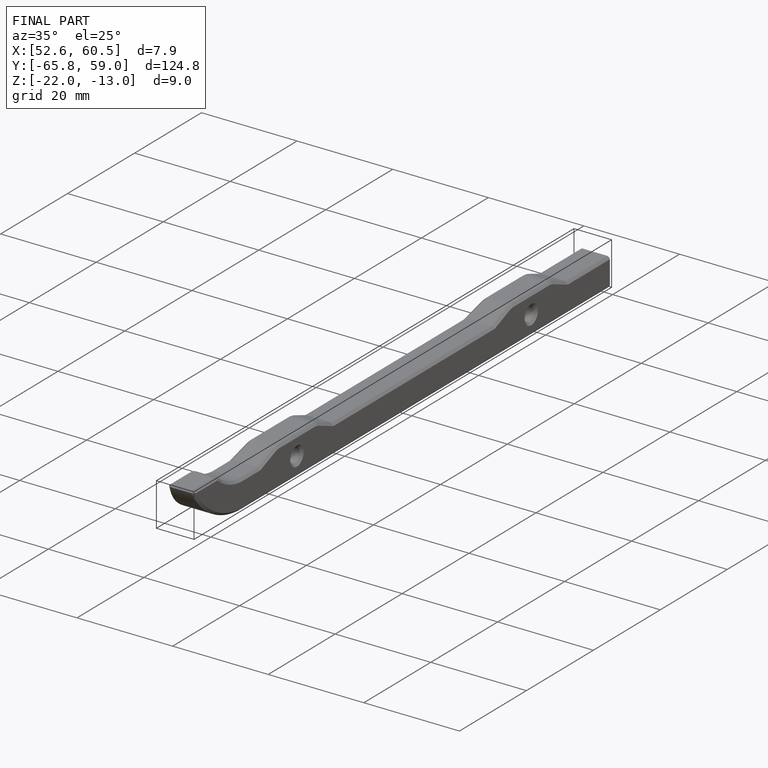
[diagram: finished part — iso view with bounding-box wireframe]
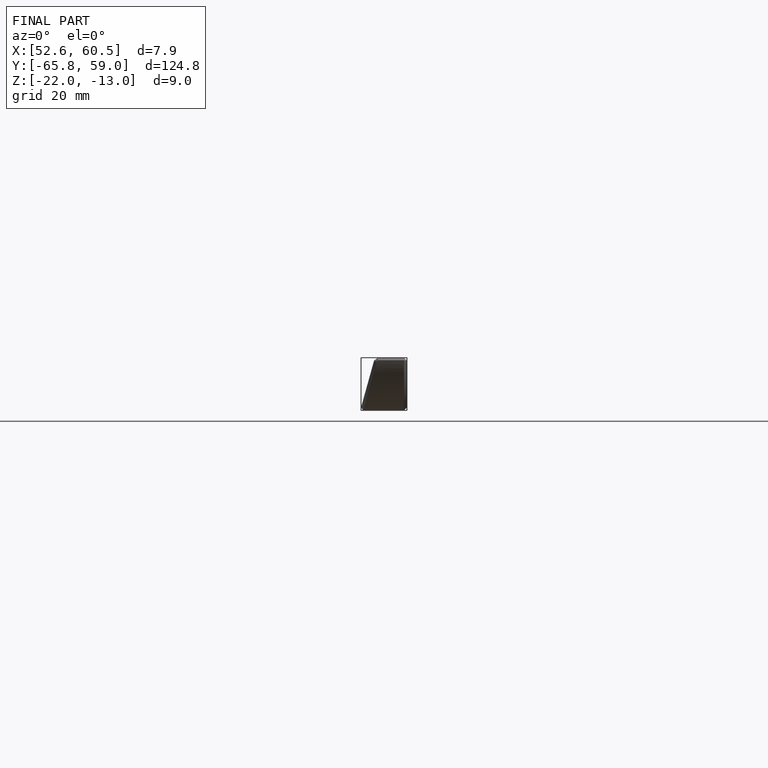
[diagram: finished part — front view with bounding-box wireframe]
